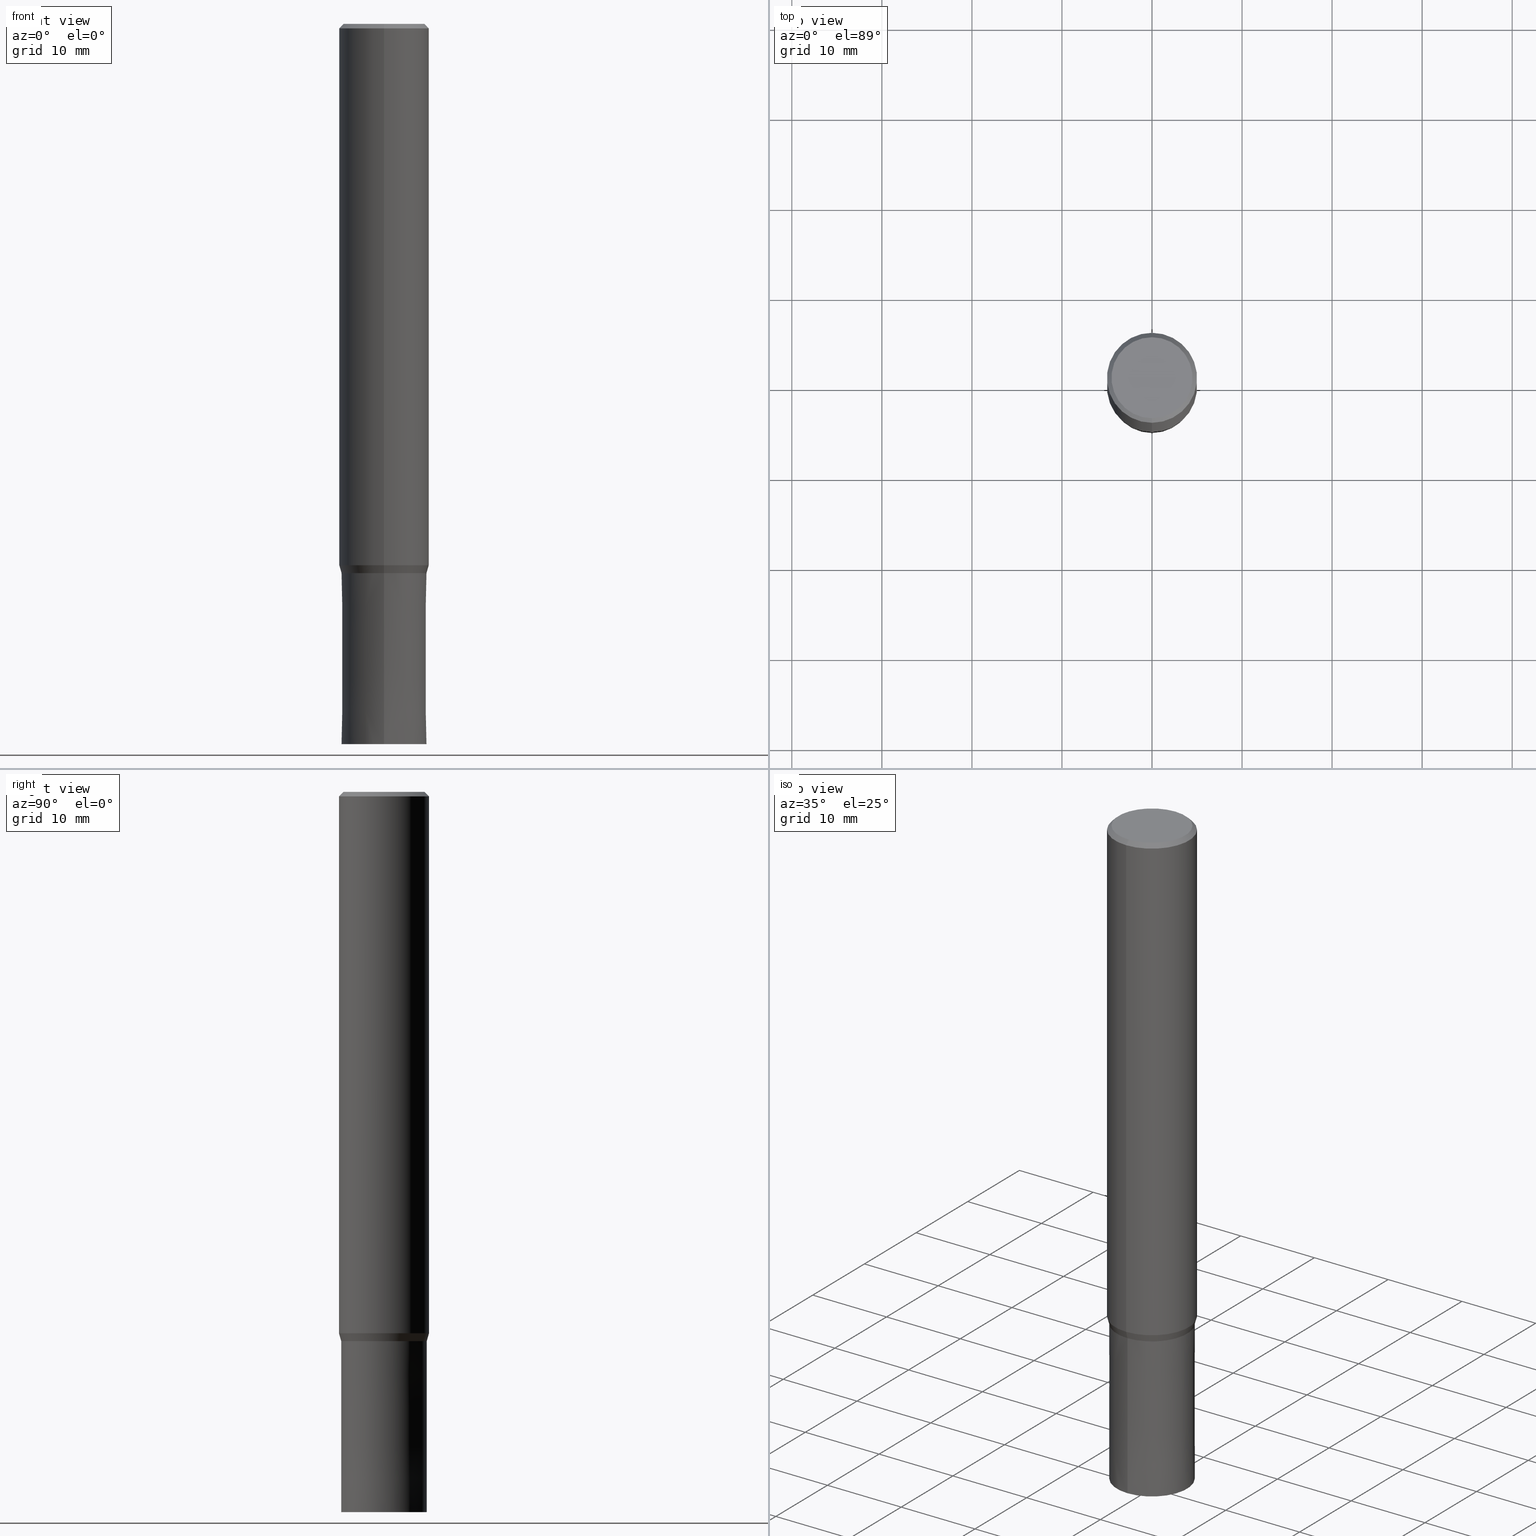
[diagram: canonical four-view strip — front | top / right | iso, engineering-drawing reading convention]
A machine part, canonical four-view strip (front | top / right | iso — engineering-drawing reading convention). The complete STEP part file that produces these views, byte-faithful:
ISO-10303-21;
HEADER;
FILE_DESCRIPTION(('no description'),'unknown implementation level');
FILE_NAME('CZS4095-1900-Huellk.stp','  ',('CIMSOURCE GmbH'),('CADClick - KiM GmbH - www.kimweb.de'),'unknown preprocess','ACIS','unknown authorization');
FILE_SCHEMA(('automotive_design'));
ENDSEC;
DATA;
#1=MECHANICAL_DESIGN_GEOMETRIC_PRESENTATION_REPRESENTATION(' ',(#14,#15,#16,#17,#18,#19,#20,#21,#22,#23,#24,#25,#26,#27,#28,#29,#30,#31,#32,#33,#34,#35,#36,#37,#38,#39,#40,#41,#42,#43,#44,#45,#46,#47,#48,#49,#50,#51,#52,#53,#54,#55,#56,#57,#58,#59,#60,#61,#62,#63,#64),#10);
#2=PRODUCT_DEFINITION_CONTEXT('',#65,'design');
#3=APPLICATION_PROTOCOL_DEFINITION('INTERNATIONAL STANDARD','automotive_design',1994,#65);
#4=PRODUCT_CATEGORY_RELATIONSHIP('NONE','NONE',#66,#67);
#5=SHAPE_DEFINITION_REPRESENTATION(#68,#69);
#6=PRODUCT_DEFINITION_CONTEXT('',#70,'design');
#7=APPLICATION_PROTOCOL_DEFINITION('INTERNATIONAL STANDARD','automotive_design',1994,#70);
#8=PRODUCT_CATEGORY_RELATIONSHIP('NONE','NONE',#71,#72);
#9=SHAPE_DEFINITION_REPRESENTATION(#73,#74);
#10= (GEOMETRIC_REPRESENTATION_CONTEXT(3)GLOBAL_UNCERTAINTY_ASSIGNED_CONTEXT((#77))GLOBAL_UNIT_ASSIGNED_CONTEXT((#79,#80,#81))REPRESENTATION_CONTEXT('NONE','WORKSPACE'));
#14=STYLED_ITEM('',(#83),#84);
#15=STYLED_ITEM('',(#85),#86);
#16=STYLED_ITEM('',(#87),#88);
#17=STYLED_ITEM('',(#89),#90);
#18=STYLED_ITEM('',(#91),#92);
#19=STYLED_ITEM('',(#93),#94);
#20=STYLED_ITEM('',(#95),#96);
#21=STYLED_ITEM('',(#97),#98);
#22=STYLED_ITEM('',(#99),#100);
#23=STYLED_ITEM('',(#101),#102);
#24=STYLED_ITEM('',(#103),#104);
#25=STYLED_ITEM('',(#105),#106);
#26=STYLED_ITEM('',(#107),#108);
#27=STYLED_ITEM('',(#109),#110);
#28=STYLED_ITEM('',(#111),#112);
#29=STYLED_ITEM('',(#113),#114);
#30=STYLED_ITEM('',(#115),#116);
#31=STYLED_ITEM('',(#117),#118);
#32=STYLED_ITEM('',(#119),#120);
#33=STYLED_ITEM('',(#121),#122);
#34=STYLED_ITEM('',(#123),#124);
#35=STYLED_ITEM('',(#125),#126);
#36=STYLED_ITEM('',(#127),#128);
#37=STYLED_ITEM('',(#129),#130);
#38=STYLED_ITEM('',(#131),#132);
#39=STYLED_ITEM('',(#133),#134);
#40=STYLED_ITEM('',(#135),#136);
#41=STYLED_ITEM('',(#137),#138);
#42=STYLED_ITEM('',(#139),#140);
#43=STYLED_ITEM('',(#141),#142);
#44=STYLED_ITEM('',(#143),#144);
#45=STYLED_ITEM('',(#145),#146);
#46=STYLED_ITEM('',(#147),#148);
#47=STYLED_ITEM('',(#149),#150);
#48=STYLED_ITEM('',(#151),#152);
#49=STYLED_ITEM('',(#153),#154);
#50=STYLED_ITEM('',(#155),#156);
#51=STYLED_ITEM('',(#157),#158);
#52=STYLED_ITEM('',(#159),#160);
#53=STYLED_ITEM('',(#161),#162);
#54=STYLED_ITEM('',(#163),#164);
#55=STYLED_ITEM('',(#165),#166);
#56=STYLED_ITEM('',(#167),#168);
#57=STYLED_ITEM('',(#169),#170);
#58=STYLED_ITEM('',(#171),#172);
#59=STYLED_ITEM('',(#173),#174);
#60=STYLED_ITEM('',(#175),#176);
#61=STYLED_ITEM('',(#177),#178);
#62=STYLED_ITEM('',(#179),#180);
#63=STYLED_ITEM('',(#181),#182);
#64=STYLED_ITEM('',(#183),#184);
#65=APPLICATION_CONTEXT(' ');
#66=PRODUCT_CATEGORY('part','NONE');
#67=PRODUCT_RELATED_PRODUCT_CATEGORY('detail',' ',(#185));
#68=PRODUCT_DEFINITION_SHAPE('NONE','NONE',#186);
#69=ADVANCED_BREP_SHAPE_REPRESENTATION('1',(#156,#187),#10);
#70=APPLICATION_CONTEXT(' ');
#71=PRODUCT_CATEGORY('part','NONE');
#72=PRODUCT_RELATED_PRODUCT_CATEGORY('detail',' ',(#188));
#73=PRODUCT_DEFINITION_SHAPE('NONE','NONE',#189);
#74=ADVANCED_BREP_SHAPE_REPRESENTATION('2',(#172,#190),#10);
#77=UNCERTAINTY_MEASURE_WITH_UNIT(LENGTH_MEASURE(1.0E-006),#79,'','');
#79= (CONVERSION_BASED_UNIT('MILLIMETRE',#193)LENGTH_UNIT()NAMED_UNIT(#196));
#80= (NAMED_UNIT(#198)PLANE_ANGLE_UNIT()SI_UNIT($,.RADIAN.));
#81= (NAMED_UNIT(#198)SOLID_ANGLE_UNIT()SI_UNIT($,.STERADIAN.));
#83=PRESENTATION_STYLE_ASSIGNMENT((#204));
#84=VERTEX_POINT('',#205);
#85=PRESENTATION_STYLE_ASSIGNMENT((#206));
#86=EDGE_CURVE('',#140,#146,#207,.T.);
#87=PRESENTATION_STYLE_ASSIGNMENT((#208));
#88=EDGE_CURVE('',#150,#118,#209,.T.);
#89=PRESENTATION_STYLE_ASSIGNMENT((#210));
#90=VERTEX_POINT('',#211);
#91=PRESENTATION_STYLE_ASSIGNMENT((#212));
#92=EDGE_CURVE('',#84,#90,#213,.T.);
#93=PRESENTATION_STYLE_ASSIGNMENT((#214));
#94=VERTEX_POINT('',#215);
#95=PRESENTATION_STYLE_ASSIGNMENT((#216));
#96=EDGE_CURVE('',#152,#94,#217,.T.);
#97=PRESENTATION_STYLE_ASSIGNMENT((#218));
#98=ADVANCED_FACE('',(#219),#220,.T.);
#99=PRESENTATION_STYLE_ASSIGNMENT((#221));
#100=VERTEX_POINT('',#222);
#101=PRESENTATION_STYLE_ASSIGNMENT((#223));
#102=VERTEX_POINT('',#224);
#103=PRESENTATION_STYLE_ASSIGNMENT((#225));
#104=VERTEX_POINT('',#226);
#105=PRESENTATION_STYLE_ASSIGNMENT((#227));
#106=EDGE_CURVE('',#90,#84,#228,.T.);
#107=PRESENTATION_STYLE_ASSIGNMENT((#229));
#108=EDGE_CURVE('',#124,#104,#230,.T.);
#109=PRESENTATION_STYLE_ASSIGNMENT((#231));
#110=ADVANCED_FACE('',(#232),#233,.T.);
#111=PRESENTATION_STYLE_ASSIGNMENT((#234));
#112=ADVANCED_FACE('',(#235),#236,.T.);
#113=PRESENTATION_STYLE_ASSIGNMENT((#237));
#114=EDGE_CURVE('',#116,#100,#238,.T.);
#115=PRESENTATION_STYLE_ASSIGNMENT((#239));
#116=VERTEX_POINT('',#240);
#117=PRESENTATION_STYLE_ASSIGNMENT((#241));
#118=VERTEX_POINT('',#242);
#119=PRESENTATION_STYLE_ASSIGNMENT((#243));
#120=ADVANCED_FACE('',(#244),#245,.T.);
#121=PRESENTATION_STYLE_ASSIGNMENT((#246));
#122=ADVANCED_FACE('',(#247),#248,.T.);
#123=PRESENTATION_STYLE_ASSIGNMENT((#249));
#124=VERTEX_POINT('',#250);
#125=PRESENTATION_STYLE_ASSIGNMENT((#251));
#126=EDGE_CURVE('',#104,#124,#252,.T.);
#127=PRESENTATION_STYLE_ASSIGNMENT((#253));
#128=EDGE_CURVE('',#94,#170,#254,.T.);
#129=PRESENTATION_STYLE_ASSIGNMENT((#255));
#130=EDGE_CURVE('',#118,#146,#256,.T.);
#131=PRESENTATION_STYLE_ASSIGNMENT((#257));
#132=ADVANCED_FACE('',(#258),#259,.T.);
#133=PRESENTATION_STYLE_ASSIGNMENT((#260));
#134=ADVANCED_FACE('',(#261),#262,.T.);
#135=PRESENTATION_STYLE_ASSIGNMENT((#263));
#136=ADVANCED_FACE('',(#264),#265,.T.);
#137=PRESENTATION_STYLE_ASSIGNMENT((#266));
#138=ADVANCED_FACE('',(#267),#268,.T.);
#139=PRESENTATION_STYLE_ASSIGNMENT((#269));
#140=VERTEX_POINT('',#270);
#141=PRESENTATION_STYLE_ASSIGNMENT((#271));
#142=ADVANCED_FACE('',(#272),#273,.T.);
#143=PRESENTATION_STYLE_ASSIGNMENT((#274));
#144=ADVANCED_FACE('',(#275),#276,.T.);
#145=PRESENTATION_STYLE_ASSIGNMENT((#277));
#146=VERTEX_POINT('',#278);
#147=PRESENTATION_STYLE_ASSIGNMENT((#279));
#148=EDGE_CURVE('',#146,#140,#280,.T.);
#149=PRESENTATION_STYLE_ASSIGNMENT((#281));
#150=VERTEX_POINT('',#282);
#151=PRESENTATION_STYLE_ASSIGNMENT((#283));
#152=VERTEX_POINT('',#284);
#153=PRESENTATION_STYLE_ASSIGNMENT((#285));
#154=EDGE_CURVE('',#102,#152,#286,.T.);
#155=PRESENTATION_STYLE_ASSIGNMENT((#287));
#156=MANIFOLD_SOLID_BREP('1',#288);
#157=PRESENTATION_STYLE_ASSIGNMENT((#289));
#158=EDGE_CURVE('',#170,#102,#290,.T.);
#159=PRESENTATION_STYLE_ASSIGNMENT((#291));
#160=EDGE_CURVE('',#94,#152,#292,.T.);
#161=PRESENTATION_STYLE_ASSIGNMENT((#293));
#162=EDGE_CURVE('',#90,#100,#294,.T.);
#163=PRESENTATION_STYLE_ASSIGNMENT((#295));
#164=EDGE_CURVE('',#140,#150,#296,.T.);
#165=PRESENTATION_STYLE_ASSIGNMENT((#297));
#166=EDGE_CURVE('',#118,#150,#298,.T.);
#167=PRESENTATION_STYLE_ASSIGNMENT((#299));
#168=ADVANCED_FACE('',(#300,#301),#302,.T.);
#169=PRESENTATION_STYLE_ASSIGNMENT((#303));
#170=VERTEX_POINT('',#304);
#171=PRESENTATION_STYLE_ASSIGNMENT((#305));
#172=MANIFOLD_SOLID_BREP('2',#306);
#173=PRESENTATION_STYLE_ASSIGNMENT((#307));
#174=EDGE_CURVE('',#116,#84,#308,.T.);
#175=PRESENTATION_STYLE_ASSIGNMENT((#309));
#176=EDGE_CURVE('',#104,#140,#310,.T.);
#177=PRESENTATION_STYLE_ASSIGNMENT((#311));
#178=EDGE_CURVE('',#102,#170,#312,.T.);
#179=PRESENTATION_STYLE_ASSIGNMENT((#313));
#180=EDGE_CURVE('',#146,#124,#314,.T.);
#181=PRESENTATION_STYLE_ASSIGNMENT((#315));
#182=ADVANCED_FACE('',(#316),#317,.T.);
#183=PRESENTATION_STYLE_ASSIGNMENT((#318));
#184=EDGE_CURVE('',#100,#116,#319,.T.);
#185=PRODUCT('1','1','PART-1-DESC',(#320));
#186=PRODUCT_DEFINITION('NONE','NONE',#321,#2);
#187=AXIS2_PLACEMENT_3D('',#322,#323,#324);
#188=PRODUCT('2','2','PART-2-DESC',(#325));
#189=PRODUCT_DEFINITION('NONE','NONE',#326,#6);
#190=AXIS2_PLACEMENT_3D('',#327,#328,#329);
#193=LENGTH_MEASURE_WITH_UNIT(LENGTH_MEASURE(1.0),#330);
#196=DIMENSIONAL_EXPONENTS(1.0,0.0,0.0,0.0,0.0,0.0,0.0);
#198=DIMENSIONAL_EXPONENTS(0.0,0.0,0.0,0.0,0.0,0.0,0.0);
#204=POINT_STYLE(' ',#331,POSITIVE_LENGTH_MEASURE(1.0E-006),#332);
#205=CARTESIAN_POINT('',(0.0,4.74995,-61.0));
#206=CURVE_STYLE('',#333,POSITIVE_LENGTH_MEASURE(1.0E-006),#334);
#207=CIRCLE('',#335,5.0);
#208=CURVE_STYLE('',#336,POSITIVE_LENGTH_MEASURE(1.0E-006),#337);
#209=CIRCLE('',#338,5.0);
#210=POINT_STYLE(' ',#339,POSITIVE_LENGTH_MEASURE(1.0E-006),#340);
#211=CARTESIAN_POINT('',(5.8168189503386E-016,-4.74995,-61.0));
#212=CURVE_STYLE('',#341,POSITIVE_LENGTH_MEASURE(1.0E-006),#342);
#213=CIRCLE('',#343,4.74995);
#214=POINT_STYLE(' ',#344,POSITIVE_LENGTH_MEASURE(1.0E-006),#345);
#215=CARTESIAN_POINT('',(5.81688018065629E-016,-4.75,-80.0));
#216=CURVE_STYLE('',#346,POSITIVE_LENGTH_MEASURE(1.0E-006),#347);
#217=CIRCLE('',#348,4.75);
#218=SURFACE_STYLE_USAGE(.BOTH.,#349);
#219=FACE_OUTER_BOUND('',#350,.T.);
#220=PLANE('',#351);
#221=POINT_STYLE(' ',#352,POSITIVE_LENGTH_MEASURE(1.0E-006),#353);
#222=CARTESIAN_POINT('',(6.12297053879419E-016,-4.99995,-60.128));
#223=POINT_STYLE(' ',#354,POSITIVE_LENGTH_MEASURE(1.0E-006),#355);
#224=CARTESIAN_POINT('',(0.0,4.7499,-61.0));
#225=POINT_STYLE(' ',#356,POSITIVE_LENGTH_MEASURE(1.0E-006),#357);
#226=CARTESIAN_POINT('',(0.0,4.5,0.0));
#227=CURVE_STYLE('',#358,POSITIVE_LENGTH_MEASURE(1.0E-006),#359);
#228=CIRCLE('',#360,4.74995);
#229=CURVE_STYLE('',#361,POSITIVE_LENGTH_MEASURE(1.0E-006),#362);
#230=CIRCLE('',#363,4.5);
#231=SURFACE_STYLE_USAGE(.BOTH.,#364);
#232=FACE_OUTER_BOUND('',#365,.T.);
#233=CONICAL_SURFACE('',#366,4.87495,0.279208199033747);
#234=SURFACE_STYLE_USAGE(.BOTH.,#367);
#235=FACE_OUTER_BOUND('',#368,.T.);
#236=CONICAL_SURFACE('',#369,4.75,0.785398163397448);
#237=CURVE_STYLE('',#370,POSITIVE_LENGTH_MEASURE(1.0E-006),#371);
#238=CIRCLE('',#372,4.99995);
#239=POINT_STYLE(' ',#373,POSITIVE_LENGTH_MEASURE(1.0E-006),#374);
#240=CARTESIAN_POINT('',(0.0,4.99995,-60.128));
#241=POINT_STYLE(' ',#375,POSITIVE_LENGTH_MEASURE(1.0E-006),#376);
#242=CARTESIAN_POINT('',(6.12303176911189E-016,-5.0,-60.128));
#243=SURFACE_STYLE_USAGE(.BOTH.,#377);
#244=FACE_OUTER_BOUND('',#378,.T.);
#245=CONICAL_SURFACE('',#379,4.74995,5.26315789467598E-006);
#246=SURFACE_STYLE_USAGE(.BOTH.,#380);
#247=FACE_OUTER_BOUND('',#381,.T.);
#248=CONICAL_SURFACE('',#382,4.87495,0.279208199033747);
#249=POINT_STYLE(' ',#383,POSITIVE_LENGTH_MEASURE(1.0E-006),#384);
#250=CARTESIAN_POINT('',(5.5107285922007E-016,-4.5,0.0));
#251=CURVE_STYLE('',#385,POSITIVE_LENGTH_MEASURE(1.0E-006),#386);
#252=CIRCLE('',#387,4.5);
#253=CURVE_STYLE('',#388,POSITIVE_LENGTH_MEASURE(1.0E-006),#389);
#254=LINE('',#390,#391);
#255=CURVE_STYLE('',#392,POSITIVE_LENGTH_MEASURE(1.0E-006),#393);
#256=LINE('',#394,#395);
#257=SURFACE_STYLE_USAGE(.BOTH.,#396);
#258=FACE_OUTER_BOUND('',#397,.T.);
#259=PLANE('',#398);
#260=SURFACE_STYLE_USAGE(.BOTH.,#399);
#261=FACE_OUTER_BOUND('',#400,.T.);
#262=PLANE('',#401);
#263=SURFACE_STYLE_USAGE(.BOTH.,#402);
#264=FACE_OUTER_BOUND('',#403,.T.);
#265=CONICAL_SURFACE('',#404,4.75,0.785398163397448);
#266=SURFACE_STYLE_USAGE(.BOTH.,#405);
#267=FACE_OUTER_BOUND('',#406,.T.);
#268=PLANE('',#407);
#269=POINT_STYLE(' ',#408,POSITIVE_LENGTH_MEASURE(1.0E-006),#409);
#270=CARTESIAN_POINT('',(0.0,5.0,-0.5));
#271=SURFACE_STYLE_USAGE(.BOTH.,#410);
#272=FACE_OUTER_BOUND('',#411,.T.);
#273=CONICAL_SURFACE('',#412,4.74995,5.26315789467598E-006);
#274=SURFACE_STYLE_USAGE(.BOTH.,#413);
#275=FACE_OUTER_BOUND('',#414,.T.);
#276=CYLINDRICAL_SURFACE('',#415,5.0);
#277=POINT_STYLE(' ',#416,POSITIVE_LENGTH_MEASURE(1.0E-006),#417);
#278=CARTESIAN_POINT('',(6.12303176911189E-016,-5.0,-0.5));
#279=CURVE_STYLE('',#418,POSITIVE_LENGTH_MEASURE(1.0E-006),#419);
#280=CIRCLE('',#420,5.0);
#281=POINT_STYLE(' ',#421,POSITIVE_LENGTH_MEASURE(1.0E-006),#422);
#282=CARTESIAN_POINT('',(0.0,5.0,-60.128));
#283=POINT_STYLE(' ',#423,POSITIVE_LENGTH_MEASURE(1.0E-006),#424);
#284=CARTESIAN_POINT('',(0.0,4.75,-80.0));
#285=CURVE_STYLE('',#425,POSITIVE_LENGTH_MEASURE(1.0E-006),#426);
#286=LINE('',#427,#428);
#287=SURFACE_STYLE_USAGE(.BOTH.,#429);
#288=CLOSED_SHELL('',(#122,#182,#136,#168,#138,#112,#144,#110,#132));
#289=CURVE_STYLE('',#430,POSITIVE_LENGTH_MEASURE(1.0E-006),#431);
#290=CIRCLE('',#432,4.7499);
#291=CURVE_STYLE('',#433,POSITIVE_LENGTH_MEASURE(1.0E-006),#434);
#292=CIRCLE('',#435,4.75);
#293=CURVE_STYLE('',#436,POSITIVE_LENGTH_MEASURE(1.0E-006),#437);
#294=LINE('',#438,#439);
#295=CURVE_STYLE('',#440,POSITIVE_LENGTH_MEASURE(1.0E-006),#441);
#296=LINE('',#442,#443);
#297=CURVE_STYLE('',#444,POSITIVE_LENGTH_MEASURE(1.0E-006),#445);
#298=CIRCLE('',#446,5.0);
#299=SURFACE_STYLE_USAGE(.BOTH.,#447);
#300=FACE_OUTER_BOUND('',#448,.T.);
#301=FACE_BOUND('',#449,.T.);
#302=PLANE('',#450);
#303=POINT_STYLE(' ',#451,POSITIVE_LENGTH_MEASURE(1.0E-006),#452);
#304=CARTESIAN_POINT('',(5.81675772002091E-016,-4.7499,-61.0));
#305=SURFACE_STYLE_USAGE(.BOTH.,#453);
#306=CLOSED_SHELL('',(#142,#98,#120,#134));
#307=CURVE_STYLE('',#454,POSITIVE_LENGTH_MEASURE(1.0E-006),#455);
#308=LINE('',#456,#457);
#309=CURVE_STYLE('',#458,POSITIVE_LENGTH_MEASURE(1.0E-006),#459);
#310=LINE('',#460,#461);
#311=CURVE_STYLE('',#462,POSITIVE_LENGTH_MEASURE(1.0E-006),#463);
#312=CIRCLE('',#464,4.7499);
#313=CURVE_STYLE('',#465,POSITIVE_LENGTH_MEASURE(1.0E-006),#466);
#314=LINE('',#467,#468);
#315=SURFACE_STYLE_USAGE(.BOTH.,#469);
#316=FACE_OUTER_BOUND('',#470,.T.);
#317=CYLINDRICAL_SURFACE('',#471,5.0);
#318=CURVE_STYLE('',#472,POSITIVE_LENGTH_MEASURE(1.0E-006),#473);
#319=CIRCLE('',#474,4.99995);
#320=PRODUCT_CONTEXT('',#65,'mechanical');
#321=PRODUCT_DEFINITION_FORMATION_WITH_SPECIFIED_SOURCE(' ','NONE',#185,.NOT_KNOWN.);
#322=CARTESIAN_POINT('',(0.0,0.0,0.0));
#323=DIRECTION('',(0.0,0.0,1.0));
#324=DIRECTION('',(1.0,0.0,0.0));
#325=PRODUCT_CONTEXT('',#70,'mechanical');
#326=PRODUCT_DEFINITION_FORMATION_WITH_SPECIFIED_SOURCE(' ','NONE',#188,.NOT_KNOWN.);
#327=CARTESIAN_POINT('',(0.0,0.0,0.0));
#328=DIRECTION('',(0.0,0.0,1.0));
#329=DIRECTION('',(1.0,0.0,0.0));
#330= (NAMED_UNIT(#196)LENGTH_UNIT()SI_UNIT(.MILLI.,.METRE.));
#331=PRE_DEFINED_MARKER('');
#332=COLOUR_RGB('',0.498039215803146,0.498039215803146,0.498039215803146);
#333=DRAUGHTING_PRE_DEFINED_CURVE_FONT('continuous');
#334=COLOUR_RGB('',0.498039215803146,0.498039215803146,0.498039215803146);
#335=AXIS2_PLACEMENT_3D('',#476,#477,#478);
#336=DRAUGHTING_PRE_DEFINED_CURVE_FONT('continuous');
#337=COLOUR_RGB('',0.498039215803146,0.498039215803146,0.498039215803146);
#338=AXIS2_PLACEMENT_3D('',#479,#480,#481);
#339=PRE_DEFINED_MARKER('');
#340=COLOUR_RGB('',0.498039215803146,0.498039215803146,0.498039215803146);
#341=DRAUGHTING_PRE_DEFINED_CURVE_FONT('continuous');
#342=COLOUR_RGB('',0.498039215803146,0.498039215803146,0.498039215803146);
#343=AXIS2_PLACEMENT_3D('',#482,#483,#484);
#344=PRE_DEFINED_MARKER('');
#345=COLOUR_RGB('',0.800000011920929,0.800000011920929,0.800000011920929);
#346=DRAUGHTING_PRE_DEFINED_CURVE_FONT('continuous');
#347=COLOUR_RGB('',0.800000011920929,0.800000011920929,0.800000011920929);
#348=AXIS2_PLACEMENT_3D('',#485,#486,#487);
#349=SURFACE_SIDE_STYLE('',(#488));
#350=EDGE_LOOP('',(#489,#490));
#351=AXIS2_PLACEMENT_3D('',#491,#492,#493);
#352=PRE_DEFINED_MARKER('');
#353=COLOUR_RGB('',0.498039215803146,0.498039215803146,0.498039215803146);
#354=PRE_DEFINED_MARKER('');
#355=COLOUR_RGB('',0.800000011920929,0.800000011920929,0.800000011920929);
#356=PRE_DEFINED_MARKER('');
#357=COLOUR_RGB('',0.498039215803146,0.498039215803146,0.498039215803146);
#358=DRAUGHTING_PRE_DEFINED_CURVE_FONT('continuous');
#359=COLOUR_RGB('',0.498039215803146,0.498039215803146,0.498039215803146);
#360=AXIS2_PLACEMENT_3D('',#494,#495,#496);
#361=DRAUGHTING_PRE_DEFINED_CURVE_FONT('continuous');
#362=COLOUR_RGB('',0.498039215803146,0.498039215803146,0.498039215803146);
#363=AXIS2_PLACEMENT_3D('',#497,#498,#499);
#364=SURFACE_SIDE_STYLE('',(#500));
#365=EDGE_LOOP('',(#501,#502,#503,#504));
#366=AXIS2_PLACEMENT_3D('',#505,#506,#507);
#367=SURFACE_SIDE_STYLE('',(#508));
#368=EDGE_LOOP('',(#509,#510,#511,#512));
#369=AXIS2_PLACEMENT_3D('',#513,#514,#515);
#370=DRAUGHTING_PRE_DEFINED_CURVE_FONT('continuous');
#371=COLOUR_RGB('',0.498039215803146,0.498039215803146,0.498039215803146);
#372=AXIS2_PLACEMENT_3D('',#516,#517,#518);
#373=PRE_DEFINED_MARKER('');
#374=COLOUR_RGB('',0.498039215803146,0.498039215803146,0.498039215803146);
#375=PRE_DEFINED_MARKER('');
#376=COLOUR_RGB('',0.498039215803146,0.498039215803146,0.498039215803146);
#377=SURFACE_SIDE_STYLE('',(#519));
#378=EDGE_LOOP('',(#520,#521,#522,#523));
#379=AXIS2_PLACEMENT_3D('',#524,#525,#526);
#380=SURFACE_SIDE_STYLE('',(#527));
#381=EDGE_LOOP('',(#528,#529,#530,#531));
#382=AXIS2_PLACEMENT_3D('',#532,#533,#534);
#383=PRE_DEFINED_MARKER('');
#384=COLOUR_RGB('',0.498039215803146,0.498039215803146,0.498039215803146);
#385=DRAUGHTING_PRE_DEFINED_CURVE_FONT('continuous');
#386=COLOUR_RGB('',0.498039215803146,0.498039215803146,0.498039215803146);
#387=AXIS2_PLACEMENT_3D('',#535,#536,#537);
#388=DRAUGHTING_PRE_DEFINED_CURVE_FONT('continuous');
#389=COLOUR_RGB('',0.800000011920929,0.800000011920929,0.800000011920929);
#390=CARTESIAN_POINT('',(5.8168189503386E-016,-4.74995,-70.5));
#391=VECTOR('',#538,1.0);
#392=DRAUGHTING_PRE_DEFINED_CURVE_FONT('continuous');
#393=COLOUR_RGB('',0.498039215803146,0.498039215803146,0.498039215803146);
#394=CARTESIAN_POINT('',(6.12303176911189E-016,-5.0,-30.314));
#395=VECTOR('',#539,1.0);
#396=SURFACE_SIDE_STYLE('',(#540));
#397=EDGE_LOOP('',(#541,#542));
#398=AXIS2_PLACEMENT_3D('',#543,#544,#545);
#399=SURFACE_SIDE_STYLE('',(#546));
#400=EDGE_LOOP('',(#547,#548));
#401=AXIS2_PLACEMENT_3D('',#549,#550,#551);
#402=SURFACE_SIDE_STYLE('',(#552));
#403=EDGE_LOOP('',(#553,#554,#555,#556));
#404=AXIS2_PLACEMENT_3D('',#557,#558,#559);
#405=SURFACE_SIDE_STYLE('',(#560));
#406=EDGE_LOOP('',(#561,#562));
#407=AXIS2_PLACEMENT_3D('',#563,#564,#565);
#408=PRE_DEFINED_MARKER('');
#409=COLOUR_RGB('',0.498039215803146,0.498039215803146,0.498039215803146);
#410=SURFACE_SIDE_STYLE('',(#566));
#411=EDGE_LOOP('',(#567,#568,#569,#570));
#412=AXIS2_PLACEMENT_3D('',#571,#572,#573);
#413=SURFACE_SIDE_STYLE('',(#574));
#414=EDGE_LOOP('',(#575,#576,#577,#578));
#415=AXIS2_PLACEMENT_3D('',#579,#580,#581);
#416=PRE_DEFINED_MARKER('');
#417=COLOUR_RGB('',0.498039215803146,0.498039215803146,0.498039215803146);
#418=DRAUGHTING_PRE_DEFINED_CURVE_FONT('continuous');
#419=COLOUR_RGB('',0.498039215803146,0.498039215803146,0.498039215803146);
#420=AXIS2_PLACEMENT_3D('',#582,#583,#584);
#421=PRE_DEFINED_MARKER('');
#422=COLOUR_RGB('',0.498039215803146,0.498039215803146,0.498039215803146);
#423=PRE_DEFINED_MARKER('');
#424=COLOUR_RGB('',0.800000011920929,0.800000011920929,0.800000011920929);
#425=DRAUGHTING_PRE_DEFINED_CURVE_FONT('continuous');
#426=COLOUR_RGB('',0.800000011920929,0.800000011920929,0.800000011920929);
#427=CARTESIAN_POINT('',(-5.8168189503386E-016,4.74995,-70.5));
#428=VECTOR('',#585,1.0);
#429=SURFACE_SIDE_STYLE('',(#586));
#430=DRAUGHTING_PRE_DEFINED_CURVE_FONT('continuous');
#431=COLOUR_RGB('',0.800000011920929,0.800000011920929,0.800000011920929);
#432=AXIS2_PLACEMENT_3D('',#587,#588,#589);
#433=DRAUGHTING_PRE_DEFINED_CURVE_FONT('continuous');
#434=COLOUR_RGB('',0.800000011920929,0.800000011920929,0.800000011920929);
#435=AXIS2_PLACEMENT_3D('',#590,#591,#592);
#436=DRAUGHTING_PRE_DEFINED_CURVE_FONT('continuous');
#437=COLOUR_RGB('',0.498039215803146,0.498039215803146,0.498039215803146);
#438=CARTESIAN_POINT('',(5.9698947445664E-016,-4.87495,-60.564));
#439=VECTOR('',#593,1.0);
#440=DRAUGHTING_PRE_DEFINED_CURVE_FONT('continuous');
#441=COLOUR_RGB('',0.498039215803146,0.498039215803146,0.498039215803146);
#442=CARTESIAN_POINT('',(-6.12303176911189E-016,5.0,-30.314));
#443=VECTOR('',#594,1.0);
#444=DRAUGHTING_PRE_DEFINED_CURVE_FONT('continuous');
#445=COLOUR_RGB('',0.498039215803146,0.498039215803146,0.498039215803146);
#446=AXIS2_PLACEMENT_3D('',#595,#596,#597);
#447=SURFACE_SIDE_STYLE('',(#598));
#448=EDGE_LOOP('',(#599,#600));
#449=EDGE_LOOP('',(#601,#602));
#450=AXIS2_PLACEMENT_3D('',#603,#604,#605);
#451=PRE_DEFINED_MARKER('');
#452=COLOUR_RGB('',0.800000011920929,0.800000011920929,0.800000011920929);
#453=SURFACE_SIDE_STYLE('',(#606));
#454=DRAUGHTING_PRE_DEFINED_CURVE_FONT('continuous');
#455=COLOUR_RGB('',0.498039215803146,0.498039215803146,0.498039215803146);
#456=CARTESIAN_POINT('',(-5.9698947445664E-016,4.87495,-60.564));
#457=VECTOR('',#607,1.0);
#458=DRAUGHTING_PRE_DEFINED_CURVE_FONT('continuous');
#459=COLOUR_RGB('',0.498039215803146,0.498039215803146,0.498039215803146);
#460=CARTESIAN_POINT('',(-5.81688018065629E-016,4.75,-0.25));
#461=VECTOR('',#608,1.0);
#462=DRAUGHTING_PRE_DEFINED_CURVE_FONT('continuous');
#463=COLOUR_RGB('',0.800000011920929,0.800000011920929,0.800000011920929);
#464=AXIS2_PLACEMENT_3D('',#609,#610,#611);
#465=DRAUGHTING_PRE_DEFINED_CURVE_FONT('continuous');
#466=COLOUR_RGB('',0.498039215803146,0.498039215803146,0.498039215803146);
#467=CARTESIAN_POINT('',(5.81688018065629E-016,-4.75,-0.25));
#468=VECTOR('',#612,1.0);
#469=SURFACE_SIDE_STYLE('',(#613));
#470=EDGE_LOOP('',(#614,#615,#616,#617));
#471=AXIS2_PLACEMENT_3D('',#618,#619,#620);
#472=DRAUGHTING_PRE_DEFINED_CURVE_FONT('continuous');
#473=COLOUR_RGB('',0.498039215803146,0.498039215803146,0.498039215803146);
#474=AXIS2_PLACEMENT_3D('',#621,#622,#623);
#476=CARTESIAN_POINT('',(0.0,0.0,-0.5));
#477=DIRECTION('',(0.0,0.0,-1.0));
#478=DIRECTION('',(0.0,1.0,0.0));
#479=CARTESIAN_POINT('',(0.0,0.0,-60.128));
#480=DIRECTION('',(0.0,0.0,-1.0));
#481=DIRECTION('',(0.0,1.0,0.0));
#482=CARTESIAN_POINT('',(0.0,0.0,-61.0));
#483=DIRECTION('',(0.0,0.0,-1.0));
#484=DIRECTION('',(0.0,1.0,0.0));
#485=CARTESIAN_POINT('',(0.0,0.0,-80.0));
#486=DIRECTION('',(0.0,0.0,-1.0));
#487=DIRECTION('',(0.0,1.0,0.0));
#488=SURFACE_STYLE_FILL_AREA(#624);
#489=ORIENTED_EDGE('',*,*,#178,.F.);
#490=ORIENTED_EDGE('',*,*,#158,.F.);
#491=CARTESIAN_POINT('',(0.0,2.37495,-61.0));
#492=DIRECTION('',(-0.0,0.0,1.0));
#493=DIRECTION('',(0.0,-1.0,0.0));
#494=CARTESIAN_POINT('',(0.0,0.0,-61.0));
#495=DIRECTION('',(0.0,0.0,-1.0));
#496=DIRECTION('',(0.0,1.0,0.0));
#497=CARTESIAN_POINT('',(0.0,0.0,0.0));
#498=DIRECTION('',(0.0,0.0,-1.0));
#499=DIRECTION('',(0.0,1.0,0.0));
#500=SURFACE_STYLE_FILL_AREA(#625);
#501=ORIENTED_EDGE('',*,*,#174,.T.);
#502=ORIENTED_EDGE('',*,*,#106,.F.);
#503=ORIENTED_EDGE('',*,*,#162,.T.);
#504=ORIENTED_EDGE('',*,*,#184,.T.);
#505=CARTESIAN_POINT('',(0.0,0.0,-60.564));
#506=DIRECTION('',(-0.0,-0.0,1.0));
#507=DIRECTION('',(0.0,1.0,0.0));
#508=SURFACE_STYLE_FILL_AREA(#626);
#509=ORIENTED_EDGE('',*,*,#176,.T.);
#510=ORIENTED_EDGE('',*,*,#148,.F.);
#511=ORIENTED_EDGE('',*,*,#180,.T.);
#512=ORIENTED_EDGE('',*,*,#108,.T.);
#513=CARTESIAN_POINT('',(0.0,0.0,-0.25));
#514=DIRECTION('',(0.0,-0.0,-1.0));
#515=DIRECTION('',(0.0,1.0,0.0));
#516=CARTESIAN_POINT('',(0.0,0.0,-60.128));
#517=DIRECTION('',(0.0,0.0,-1.0));
#518=DIRECTION('',(0.0,1.0,0.0));
#519=SURFACE_STYLE_FILL_AREA(#627);
#520=ORIENTED_EDGE('',*,*,#154,.T.);
#521=ORIENTED_EDGE('',*,*,#160,.F.);
#522=ORIENTED_EDGE('',*,*,#128,.T.);
#523=ORIENTED_EDGE('',*,*,#158,.T.);
#524=CARTESIAN_POINT('',(0.0,0.0,-70.5));
#525=DIRECTION('',(0.0,-0.0,-1.0));
#526=DIRECTION('',(0.0,1.0,0.0));
#527=SURFACE_STYLE_FILL_AREA(#628);
#528=ORIENTED_EDGE('',*,*,#174,.F.);
#529=ORIENTED_EDGE('',*,*,#114,.T.);
#530=ORIENTED_EDGE('',*,*,#162,.F.);
#531=ORIENTED_EDGE('',*,*,#92,.F.);
#532=CARTESIAN_POINT('',(0.0,0.0,-60.564));
#533=DIRECTION('',(-0.0,-0.0,1.0));
#534=DIRECTION('',(0.0,1.0,0.0));
#535=CARTESIAN_POINT('',(0.0,0.0,0.0));
#536=DIRECTION('',(0.0,0.0,-1.0));
#537=DIRECTION('',(0.0,1.0,0.0));
#538=DIRECTION('',(-6.44529659896085E-022,5.26315789465168E-006,0.99999999998615));
#539=DIRECTION('',(-0.0,-0.0,1.0));
#540=SURFACE_STYLE_FILL_AREA(#629);
#541=ORIENTED_EDGE('',*,*,#92,.T.);
#542=ORIENTED_EDGE('',*,*,#106,.T.);
#543=CARTESIAN_POINT('',(0.0,2.374975,-61.0));
#544=DIRECTION('',(0.0,0.0,-1.0));
#545=DIRECTION('',(0.0,1.0,0.0));
#546=SURFACE_STYLE_FILL_AREA(#630);
#547=ORIENTED_EDGE('',*,*,#96,.T.);
#548=ORIENTED_EDGE('',*,*,#160,.T.);
#549=CARTESIAN_POINT('',(0.0,2.3725,-80.0));
#550=DIRECTION('',(0.0,0.0,-1.0));
#551=DIRECTION('',(0.0,1.0,0.0));
#552=SURFACE_STYLE_FILL_AREA(#631);
#553=ORIENTED_EDGE('',*,*,#176,.F.);
#554=ORIENTED_EDGE('',*,*,#126,.T.);
#555=ORIENTED_EDGE('',*,*,#180,.F.);
#556=ORIENTED_EDGE('',*,*,#86,.F.);
#557=CARTESIAN_POINT('',(0.0,0.0,-0.25));
#558=DIRECTION('',(0.0,-0.0,-1.0));
#559=DIRECTION('',(0.0,1.0,0.0));
#560=SURFACE_STYLE_FILL_AREA(#632);
#561=ORIENTED_EDGE('',*,*,#126,.F.);
#562=ORIENTED_EDGE('',*,*,#108,.F.);
#563=CARTESIAN_POINT('',(0.0,2.25,0.0));
#564=DIRECTION('',(-0.0,0.0,1.0));
#565=DIRECTION('',(0.0,-1.0,0.0));
#566=SURFACE_STYLE_FILL_AREA(#633);
#567=ORIENTED_EDGE('',*,*,#154,.F.);
#568=ORIENTED_EDGE('',*,*,#178,.T.);
#569=ORIENTED_EDGE('',*,*,#128,.F.);
#570=ORIENTED_EDGE('',*,*,#96,.F.);
#571=CARTESIAN_POINT('',(0.0,0.0,-70.5));
#572=DIRECTION('',(0.0,-0.0,-1.0));
#573=DIRECTION('',(0.0,1.0,0.0));
#574=SURFACE_STYLE_FILL_AREA(#634);
#575=ORIENTED_EDGE('',*,*,#164,.T.);
#576=ORIENTED_EDGE('',*,*,#166,.F.);
#577=ORIENTED_EDGE('',*,*,#130,.T.);
#578=ORIENTED_EDGE('',*,*,#148,.T.);
#579=CARTESIAN_POINT('',(0.0,0.0,-30.314));
#580=DIRECTION('',(-0.0,-0.0,1.0));
#581=DIRECTION('',(0.0,1.0,0.0));
#582=CARTESIAN_POINT('',(0.0,0.0,-0.5));
#583=DIRECTION('',(0.0,0.0,-1.0));
#584=DIRECTION('',(0.0,1.0,0.0));
#585=DIRECTION('',(-6.44529659896086E-022,5.26315789465168E-006,-0.99999999998615));
#586=SURFACE_STYLE_FILL_AREA(#635);
#587=CARTESIAN_POINT('',(0.0,0.0,-61.0));
#588=DIRECTION('',(0.0,0.0,-1.0));
#589=DIRECTION('',(0.0,1.0,0.0));
#590=CARTESIAN_POINT('',(0.0,0.0,-80.0));
#591=DIRECTION('',(0.0,0.0,-1.0));
#592=DIRECTION('',(0.0,1.0,0.0));
#593=DIRECTION('',(3.37494895041124E-017,-0.275594597388538,0.961273955691222));
#594=DIRECTION('',(0.0,0.0,-1.0));
#595=CARTESIAN_POINT('',(0.0,0.0,-60.128));
#596=DIRECTION('',(0.0,0.0,-1.0));
#597=DIRECTION('',(0.0,1.0,0.0));
#598=SURFACE_STYLE_FILL_AREA(#636);
#599=ORIENTED_EDGE('',*,*,#88,.T.);
#600=ORIENTED_EDGE('',*,*,#166,.T.);
#601=ORIENTED_EDGE('',*,*,#114,.F.);
#602=ORIENTED_EDGE('',*,*,#184,.F.);
#603=CARTESIAN_POINT('',(0.0,2.5,-60.128));
#604=DIRECTION('',(0.0,0.0,-1.0));
#605=DIRECTION('',(0.0,1.0,0.0));
#606=SURFACE_STYLE_FILL_AREA(#637);
#607=DIRECTION('',(3.37494895041124E-017,-0.275594597388538,-0.961273955691222));
#608=DIRECTION('',(-8.65927457071936E-017,0.707106781186548,-0.707106781186548));
#609=CARTESIAN_POINT('',(0.0,0.0,-61.0));
#610=DIRECTION('',(0.0,0.0,-1.0));
#611=DIRECTION('',(0.0,1.0,0.0));
#612=DIRECTION('',(-8.65927457071936E-017,0.707106781186548,0.707106781186548));
#613=SURFACE_STYLE_FILL_AREA(#638);
#614=ORIENTED_EDGE('',*,*,#164,.F.);
#615=ORIENTED_EDGE('',*,*,#86,.T.);
#616=ORIENTED_EDGE('',*,*,#130,.F.);
#617=ORIENTED_EDGE('',*,*,#88,.F.);
#618=CARTESIAN_POINT('',(0.0,0.0,-30.314));
#619=DIRECTION('',(-0.0,-0.0,1.0));
#620=DIRECTION('',(0.0,1.0,0.0));
#621=CARTESIAN_POINT('',(0.0,0.0,-60.128));
#622=DIRECTION('',(0.0,0.0,-1.0));
#623=DIRECTION('',(0.0,1.0,0.0));
#624=FILL_AREA_STYLE('',(#639));
#625=FILL_AREA_STYLE('',(#640));
#626=FILL_AREA_STYLE('',(#641));
#627=FILL_AREA_STYLE('',(#642));
#628=FILL_AREA_STYLE('',(#643));
#629=FILL_AREA_STYLE('',(#644));
#630=FILL_AREA_STYLE('',(#645));
#631=FILL_AREA_STYLE('',(#646));
#632=FILL_AREA_STYLE('',(#647));
#633=FILL_AREA_STYLE('',(#648));
#634=FILL_AREA_STYLE('',(#649));
#635=FILL_AREA_STYLE('',(#650));
#636=FILL_AREA_STYLE('',(#651));
#637=FILL_AREA_STYLE('',(#652));
#638=FILL_AREA_STYLE('',(#653));
#639=FILL_AREA_STYLE_COLOUR('',#654);
#640=FILL_AREA_STYLE_COLOUR('',#655);
#641=FILL_AREA_STYLE_COLOUR('',#656);
#642=FILL_AREA_STYLE_COLOUR('',#657);
#643=FILL_AREA_STYLE_COLOUR('',#658);
#644=FILL_AREA_STYLE_COLOUR('',#659);
#645=FILL_AREA_STYLE_COLOUR('',#660);
#646=FILL_AREA_STYLE_COLOUR('',#661);
#647=FILL_AREA_STYLE_COLOUR('',#662);
#648=FILL_AREA_STYLE_COLOUR('',#663);
#649=FILL_AREA_STYLE_COLOUR('',#664);
#650=FILL_AREA_STYLE_COLOUR('',#665);
#651=FILL_AREA_STYLE_COLOUR('',#666);
#652=FILL_AREA_STYLE_COLOUR('',#667);
#653=FILL_AREA_STYLE_COLOUR('',#668);
#654=COLOUR_RGB('',0.800000011920929,0.800000011920929,0.800000011920929);
#655=COLOUR_RGB('',0.498039215803146,0.498039215803146,0.498039215803146);
#656=COLOUR_RGB('',0.498039215803146,0.498039215803146,0.498039215803146);
#657=COLOUR_RGB('',0.800000011920929,0.800000011920929,0.800000011920929);
#658=COLOUR_RGB('',0.498039215803146,0.498039215803146,0.498039215803146);
#659=COLOUR_RGB('',0.498039215803146,0.498039215803146,0.498039215803146);
#660=COLOUR_RGB('',0.800000011920929,0.800000011920929,0.800000011920929);
#661=COLOUR_RGB('',0.498039215803146,0.498039215803146,0.498039215803146);
#662=COLOUR_RGB('',0.498039215803146,0.498039215803146,0.498039215803146);
#663=COLOUR_RGB('',0.800000011920929,0.800000011920929,0.800000011920929);
#664=COLOUR_RGB('',0.498039215803146,0.498039215803146,0.498039215803146);
#665=COLOUR_RGB('',0.498039215803146,0.498039215803146,0.498039215803146);
#666=COLOUR_RGB('',0.498039215803146,0.498039215803146,0.498039215803146);
#667=COLOUR_RGB('',0.800000011920929,0.800000011920929,0.800000011920929);
#668=COLOUR_RGB('',0.498039215803146,0.498039215803146,0.498039215803146);
#669=AXIS2_PLACEMENT_3D('PCS',#670,#671,#672);
#670=CARTESIAN_POINT('',(0.0,0.0,0.0));
#671=DIRECTION('',(0.0,0.0,1.0));
#672=DIRECTION('',(1.0,0.0,0.0));
#673=AXIS2_PLACEMENT_3D('CIP',#674,#675,#676);
#674=CARTESIAN_POINT('',(0.0,0.0,-80.0));
#675=DIRECTION('',(0.0,0.0,1.0));
#676=DIRECTION('',(1.0,0.0,0.0));
#677=AXIS2_PLACEMENT_3D('CRP',#678,#679,#680);
#678=CARTESIAN_POINT('',(-4.75,0.0,-80.0));
#679=DIRECTION('',(0.0,0.0,1.0));
#680=DIRECTION('',(1.0,0.0,0.0));
#681=AXIS2_PLACEMENT_3D('MCS',#682,#683,#684);
#682=CARTESIAN_POINT('',(0.0,0.0,-60.128));
#683=DIRECTION('',(0.0,0.0,1.0));
#684=DIRECTION('',(1.0,0.0,0.0));
#685=CONSTRUCTIVE_GEOMETRY_REPRESENTATION_RELATIONSHIP('coordinate systems',$,#69,#686);
#686=CONSTRUCTIVE_GEOMETRY_REPRESENTATION('coordinate systems',(#669,#673,#677,#681),#10);
ENDSEC;
END-ISO-10303-21;
